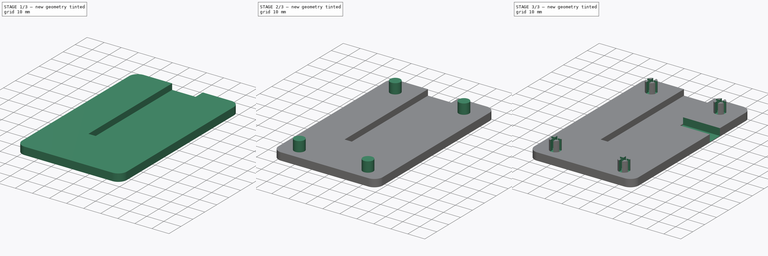
[diagram: build sequence overview — one tinted view per stage of 3, left to right]
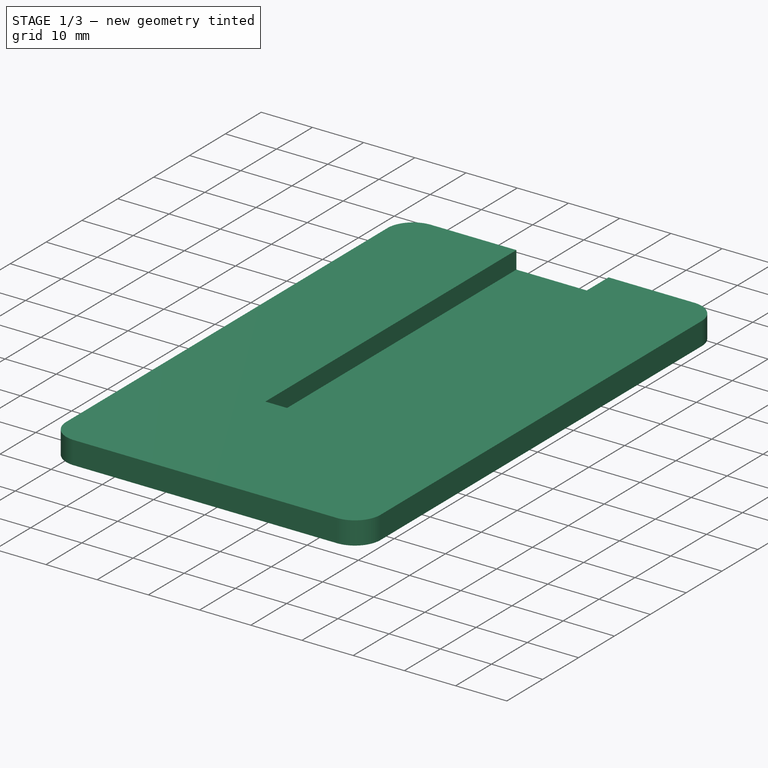
[diagram: stage 1 of 3 — iso view after this stage's code; geometry added in this stage tinted green]
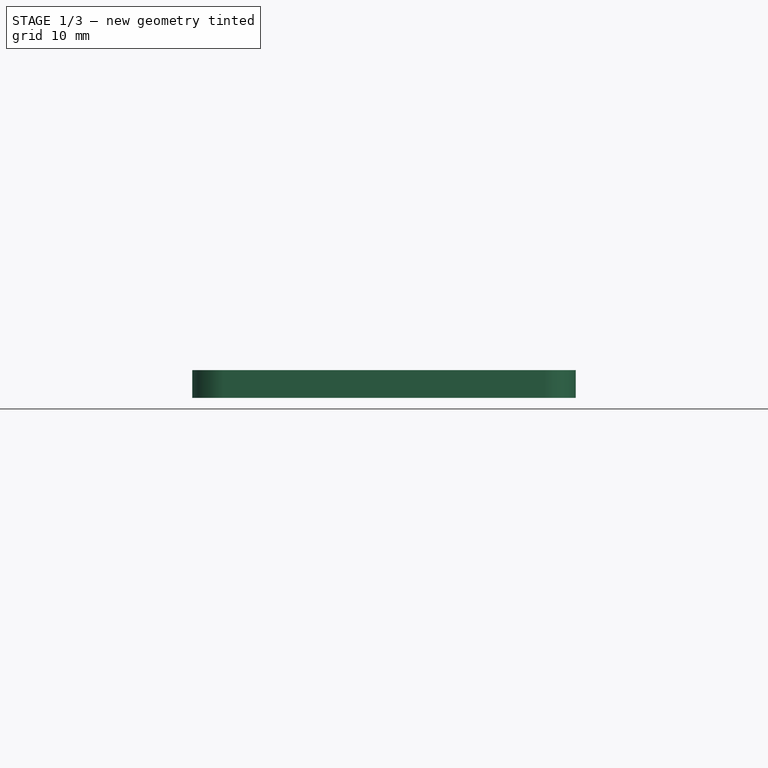
[diagram: stage 1 of 3 — front view after this stage's code; geometry added in this stage tinted green]
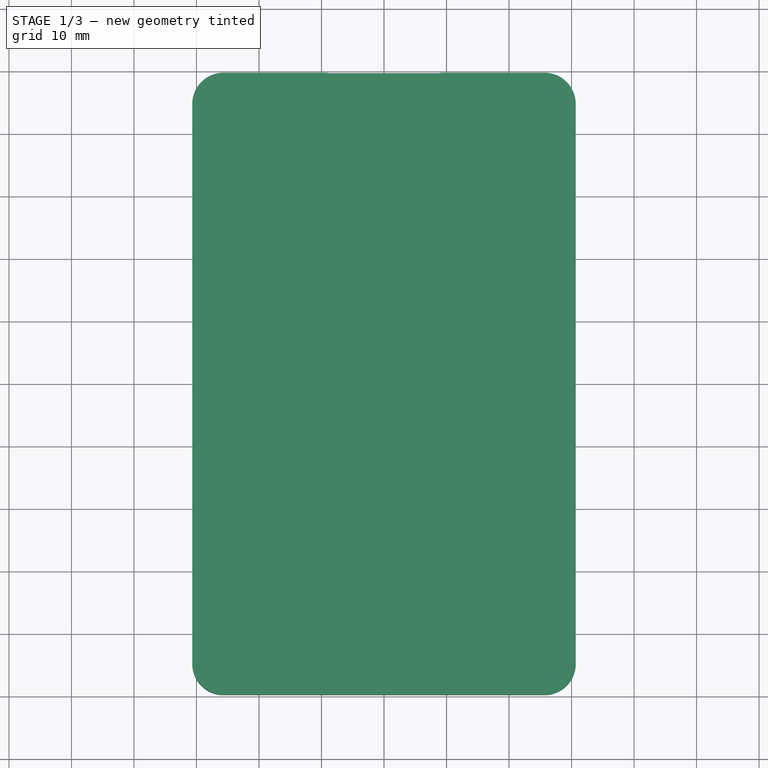
[diagram: stage 1 of 3 — top view after this stage's code; geometry added in this stage tinted green]
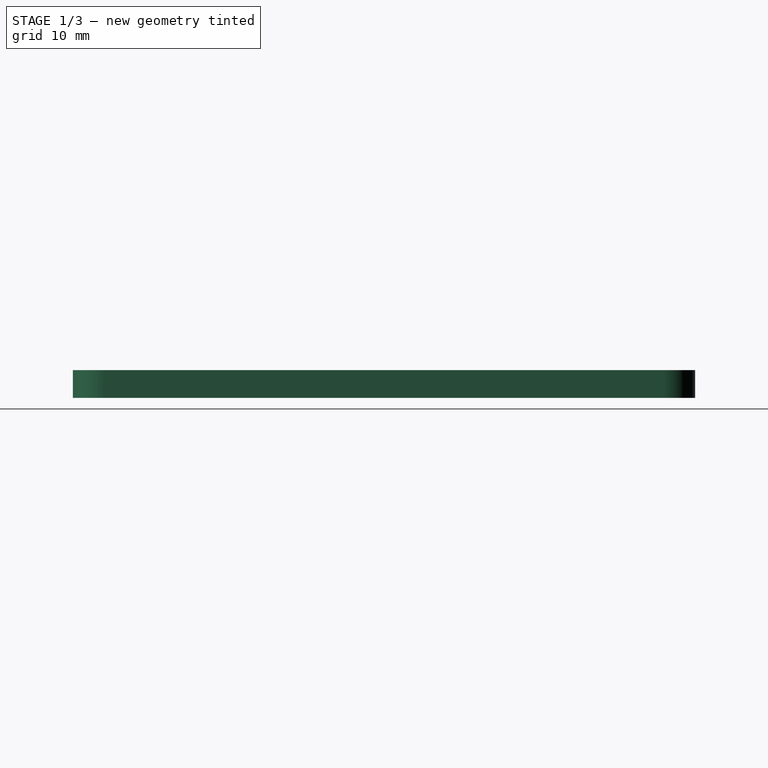
[diagram: stage 1 of 3 — right view after this stage's code; geometry added in this stage tinted green]
FCSTD DOCUMENT  (FreeCAD 1.0R39109 (Git))
Label: Stomper Base
License: All rights reserved
LicenseURL: https://en.wikipedia.org/wiki/All_rights_reserved
objects: Sketcher::SketchObject×5, PartDesign::Pocket×3, PartDesign::Pad×2, PartDesign::Body×1
note: 26 computed .brp shape members not serialized (recipe doc carries the construction recipe); baked Part::Feature solids carry a one-line shape summary decoded from their .brp

FEATURE [Sketcher::SketchObject] Sketch
  ArcFitTolerance = 1e-06
  AttachmentSupport = -> [XY_Plane]
  FullyConstrained = true
  MakeInternals = false
  MapMode = 5
  sketch-geometry (13):
    g0: LineSegment StartX=-30.675 StartY=44.765 StartZ=0 EndX=-30.675 EndY=-44.765 EndZ=0
    g1: LineSegment StartX=-25.675 StartY=-49.765 StartZ=0 EndX=25.675 EndY=-49.765 EndZ=0
    g2: LineSegment StartX=30.675 StartY=-44.765 StartZ=0 EndX=30.675 EndY=44.765 EndZ=0
    g3: LineSegment StartX=25.675 StartY=49.765 StartZ=0 EndX=-25.675 EndY=49.765 EndZ=0
    g4: GeomPoint [constr] X=0 Y=0 Z=0
    g5: ArcOfCircle CenterX=-25.675 CenterY=44.765 CenterZ=0 NormalX=0 NormalY=0 NormalZ=1 AngleXU=0 Radius=5 StartAngle=1.5708 EndAngle=3.14159
    g6: GeomPoint [constr] X=-30.675 Y=49.765 Z=0
    g7: ArcOfCircle CenterX=25.675 CenterY=44.765 CenterZ=0 NormalX=0 NormalY=0 NormalZ=1 AngleXU=0 Radius=5 StartAngle=4e-16 EndAngle=1.5708
    g8: GeomPoint [constr] X=30.675 Y=49.765 Z=0
    g9: ArcOfCircle CenterX=25.675 CenterY=-44.765 CenterZ=0 NormalX=0 NormalY=0 NormalZ=1 AngleXU=0 Radius=5 StartAngle=4.71239 EndAngle=6.28319
    g10: GeomPoint [constr] X=30.675 Y=-49.765 Z=0
    g11: ArcOfCircle CenterX=-25.675 CenterY=-44.765 CenterZ=0 NormalX=0 NormalY=0 NormalZ=1 AngleXU=0 Radius=5 StartAngle=3.14159 EndAngle=4.71239
    g12: GeomPoint [constr] X=-30.675 Y=-49.765 Z=0
  constraints (28):
    c: Vertical(g0)
    c: Vertical(g2)
    c: Horizontal(g1)
    c: Horizontal(g3)
    c: Symmetric(g10,g6,g4)
    c: Coincident(g4,g-1)
    c: DistanceX(g6,g8) = 61.35
    c: DistanceY(g10,g8) = 99.53
    c: PointOnObject(g6,g0)
    c: PointOnObject(g6,g3)
    c: Tangent(g0,g5) = -1.5708
    c: Tangent(g3,g5) = -1.5708
    c: Radius(g5) = 5
    c: PointOnObject(g8,g2)
    c: PointOnObject(g8,g3)
    c: Tangent(g2,g7) = -1.5708
    c: Tangent(g3,g7) = -1.5708
    c: PointOnObject(g10,g1)
    c: PointOnObject(g10,g2)
    c: Tangent(g1,g9) = -1.5708
    c: Tangent(g2,g9) = -1.5708
    c: PointOnObject(g12,g0)
    c: PointOnObject(g12,g1)
    c: Tangent(g0,g11) = -1.5708
    c: Tangent(g1,g11) = -1.5708
    c: Equal(g7,g5)
    c: Equal(g9,g7)
    c: Equal(g11,g9)
FEATURE [PartDesign::Pad] Pad
  Direction = (0,0,1)
  Length = 4.45
  Length2 = 10
  Profile = -> Sketch
  ReferenceAxis = -> Sketch [N_Axis]
  Refine = true
  Suppressed = false
  Type = 0
FEATURE [Sketcher::SketchObject] Sketch001
  ArcFitTolerance = 1e-06
  AttachmentSupport = -> [Pad]
  ExternalGeometry = -> [Pad]
  FullyConstrained = true
  MakeInternals = false
  MapMode = 5
  Placement = pos=(0,0,4.45) rot=(0,0,1;0rad)
  sketch-geometry (4):
    g0: LineSegment StartX=-9 StartY=49.765 StartZ=0 EndX=-9 EndY=-20.235 EndZ=0
    g1: LineSegment StartX=9 StartY=49.765 StartZ=0 EndX=9 EndY=-20.235 EndZ=0
    g2: LineSegment StartX=-9 StartY=49.765 StartZ=0 EndX=9 EndY=49.765 EndZ=0
    g3: LineSegment StartX=-9 StartY=-20.235 StartZ=0 EndX=9 EndY=-20.235 EndZ=0
  constraints (11):
    c: PointOnObject(g0,g-3)
    c: Vertical(g0)
    c: DistanceY(g0,g0) = 70
    c: Vertical(g1)
    c: Equal(g0,g1)
    c: Coincident(g2,g0)
    c: Coincident(g2,g1)
    c: Symmetric(g0,g1,g-2)
    c: DistanceX(g0,g-1) = 9
    c: Coincident(g3,g0)
    c: Coincident(g3,g1)
FEATURE [PartDesign::Pocket] Pocket
  BaseFeature = -> Pad
  Direction = (0,0,-1)
  Length = 3.45
  Length2 = 5
  Profile = -> Sketch001
  ReferenceAxis = -> Sketch001 [N_Axis]
  Refine = true
  Suppressed = false
  Type = 0
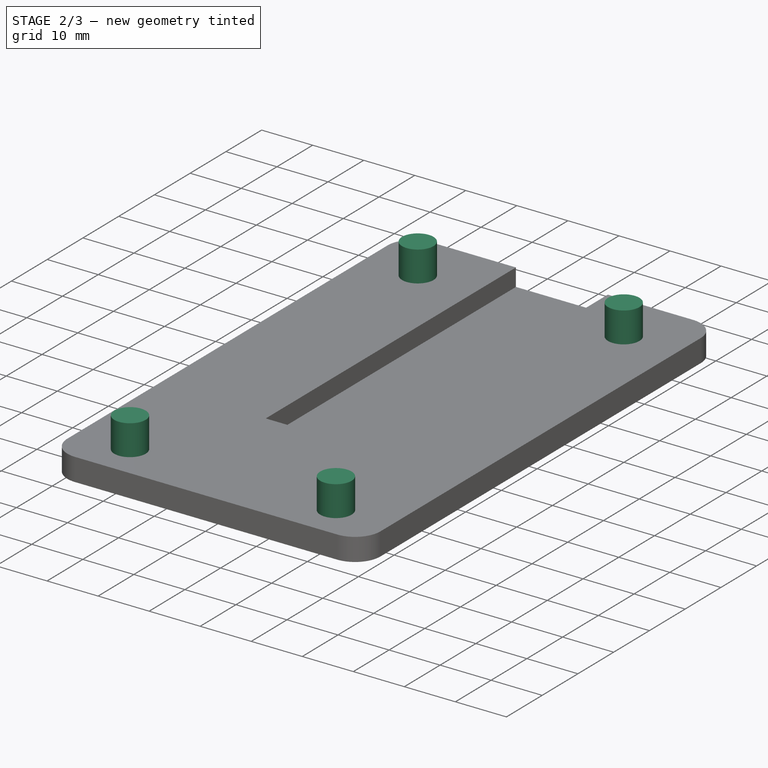
[diagram: stage 2 of 3 — iso view after this stage's code; geometry added in this stage tinted green]
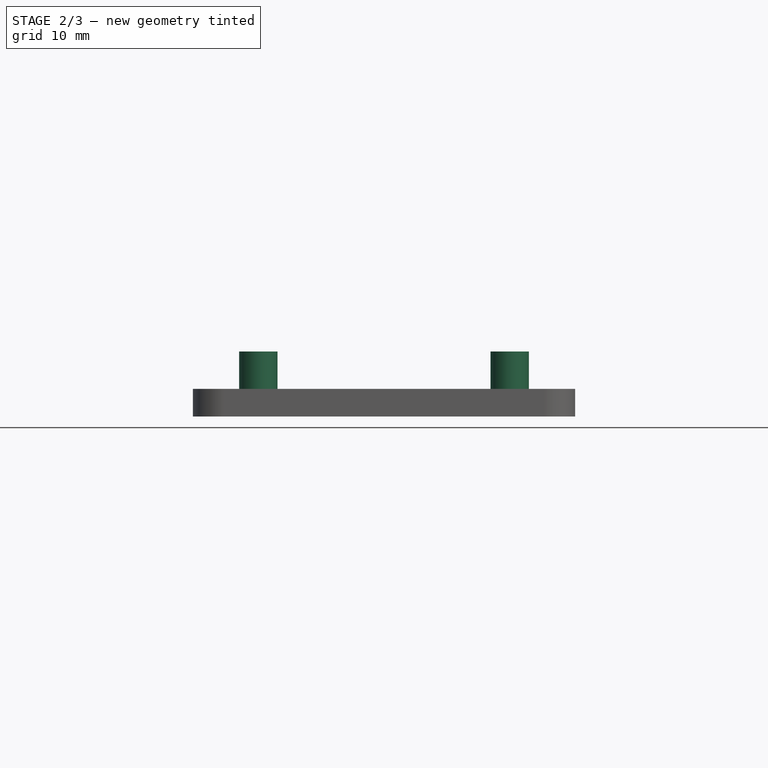
[diagram: stage 2 of 3 — front view after this stage's code; geometry added in this stage tinted green]
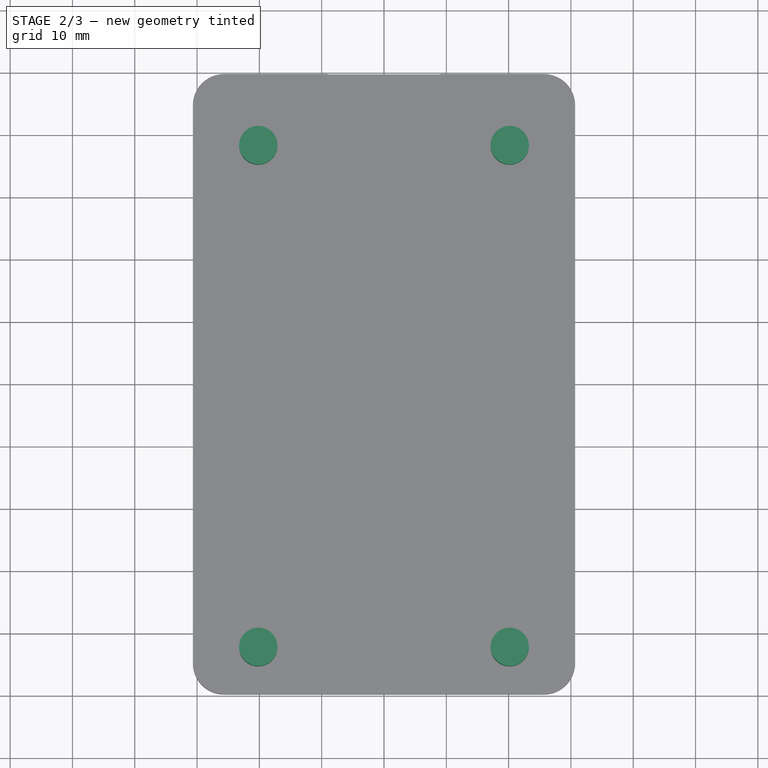
[diagram: stage 2 of 3 — top view after this stage's code; geometry added in this stage tinted green]
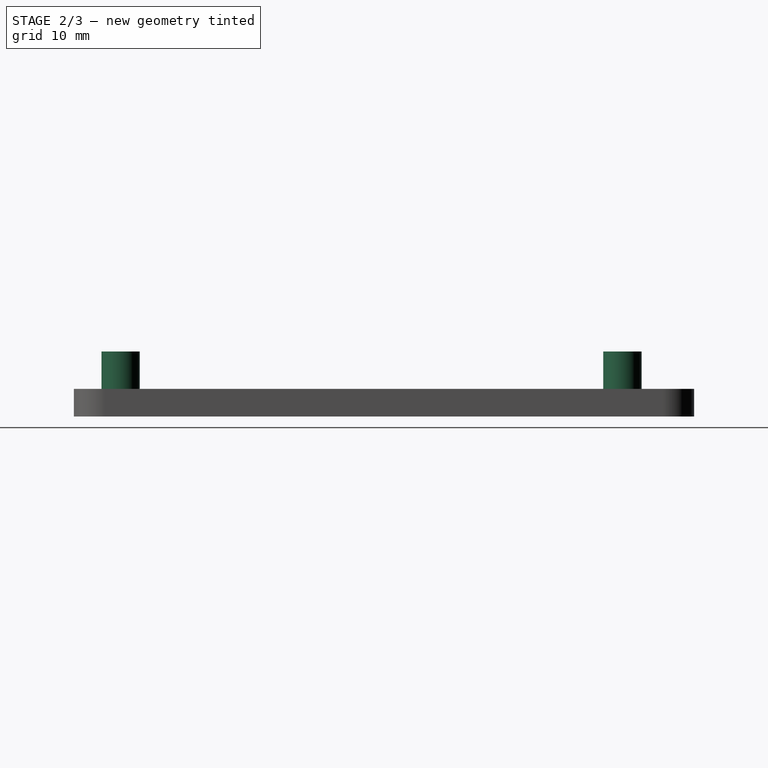
[diagram: stage 2 of 3 — right view after this stage's code; geometry added in this stage tinted green]
FEATURE [Sketcher::SketchObject] Sketch002
  ArcFitTolerance = 1e-06
  AttachmentSupport = -> [Pocket]
  ExternalGeometry = -> [Pocket]
  FullyConstrained = true
  MakeInternals = false
  MapMode = 5
  Placement = pos=(0,0,4.45) rot=(0,0,1;0rad)
  sketch-geometry (4):
    g0: Circle CenterX=-20.175 CenterY=38.265 CenterZ=0 NormalX=0 NormalY=0 NormalZ=1 AngleXU=0 Radius=3.075
    g1: Circle CenterX=20.175 CenterY=38.265 CenterZ=0 NormalX=0 NormalY=0 NormalZ=1 AngleXU=0 Radius=3.075
    g2: Circle CenterX=-20.175 CenterY=-42.265 CenterZ=0 NormalX=0 NormalY=0 NormalZ=1 AngleXU=0 Radius=3.075
    g3: Circle CenterX=20.175 CenterY=-42.265 CenterZ=0 NormalX=0 NormalY=0 NormalZ=1 AngleXU=0 Radius=3.075
  constraints (10):
    c: Diameter(g0) = 6.15
    c: Distance(g0,g-3) = 11.5
    c: Distance(g0,g-7) = 10.5
    c: Diameter(g1) = 6.15
    c: Symmetric(g0,g1,g-2)
    c: Diameter(g2) = 6.15
    c: Diameter(g3) = 6.15
    c: Distance(g2,g-6) = 7.5
    c: Symmetric(g2,g3,g-2)
    c: Distance(g2,g-7) = 10.5
FEATURE [PartDesign::Pad] Pad001
  BaseFeature = -> Pocket
  Direction = (0,0,1)
  Length = 6
  Length2 = 10
  Profile = -> Sketch002
  ReferenceAxis = -> Sketch002 [N_Axis]
  Refine = true
  Suppressed = false
  Type = 0
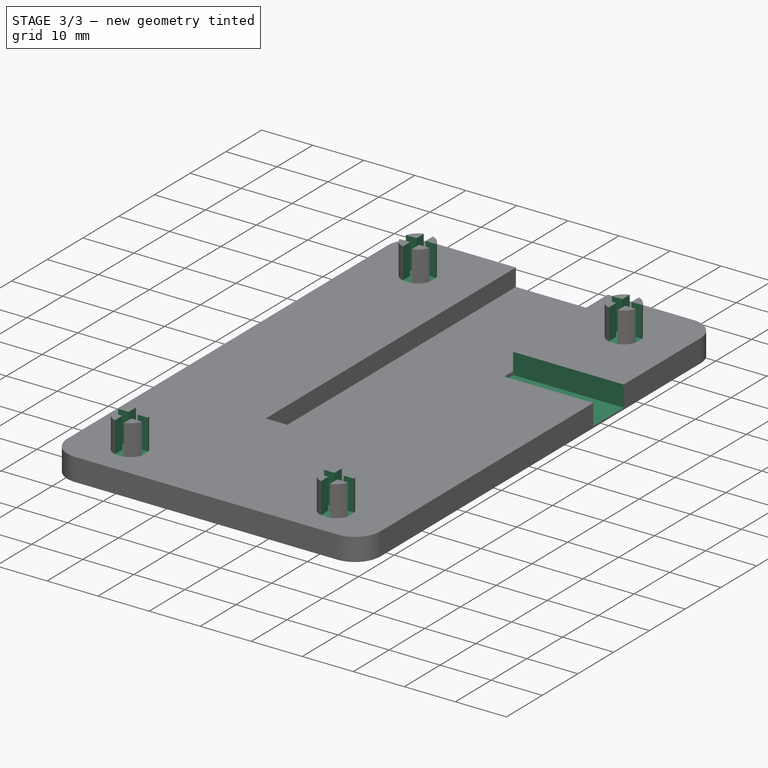
[diagram: stage 3 of 3 — iso view after this stage's code; geometry added in this stage tinted green]
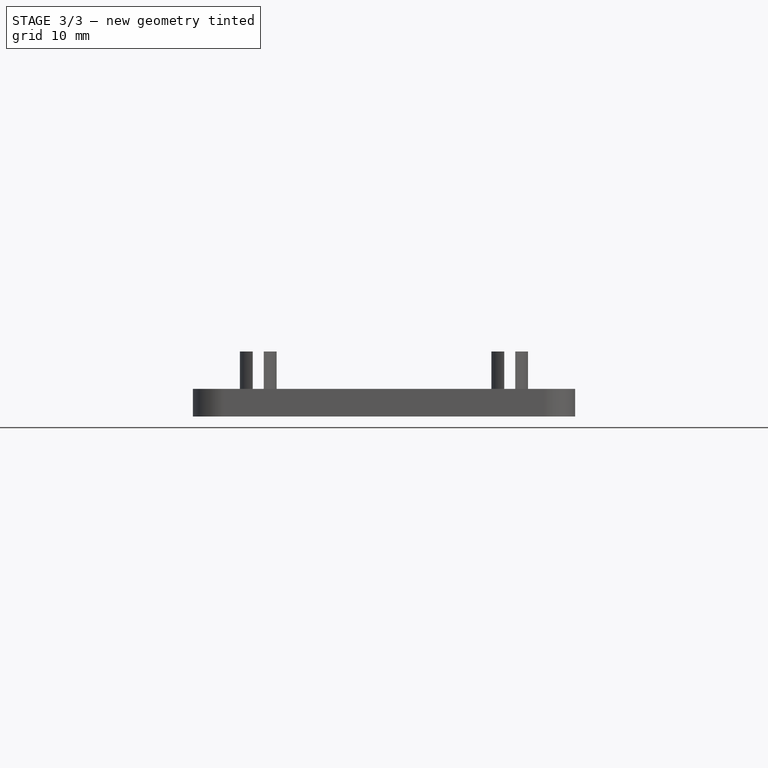
[diagram: stage 3 of 3 — front view after this stage's code; geometry added in this stage tinted green]
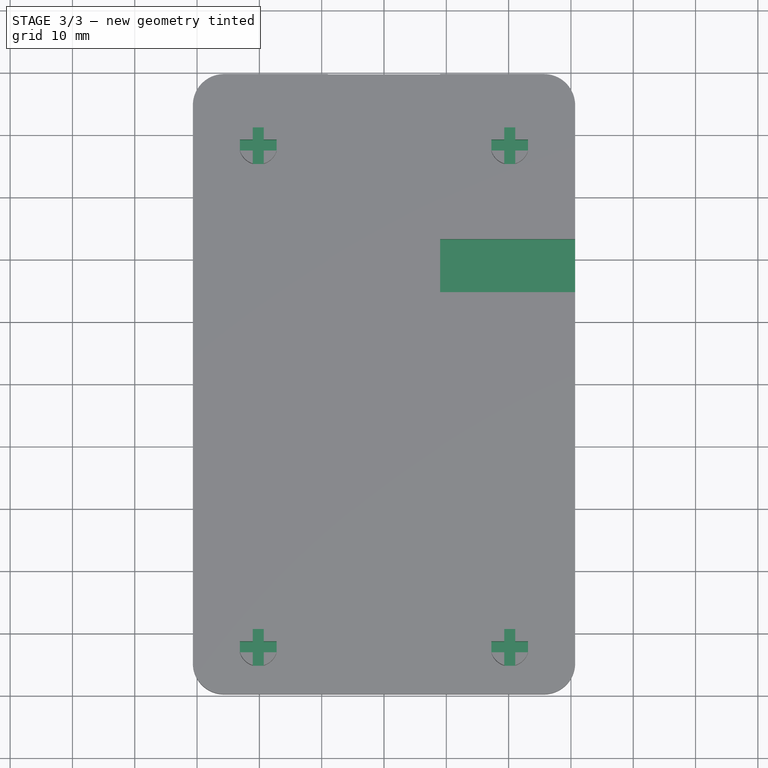
[diagram: stage 3 of 3 — top view after this stage's code; geometry added in this stage tinted green]
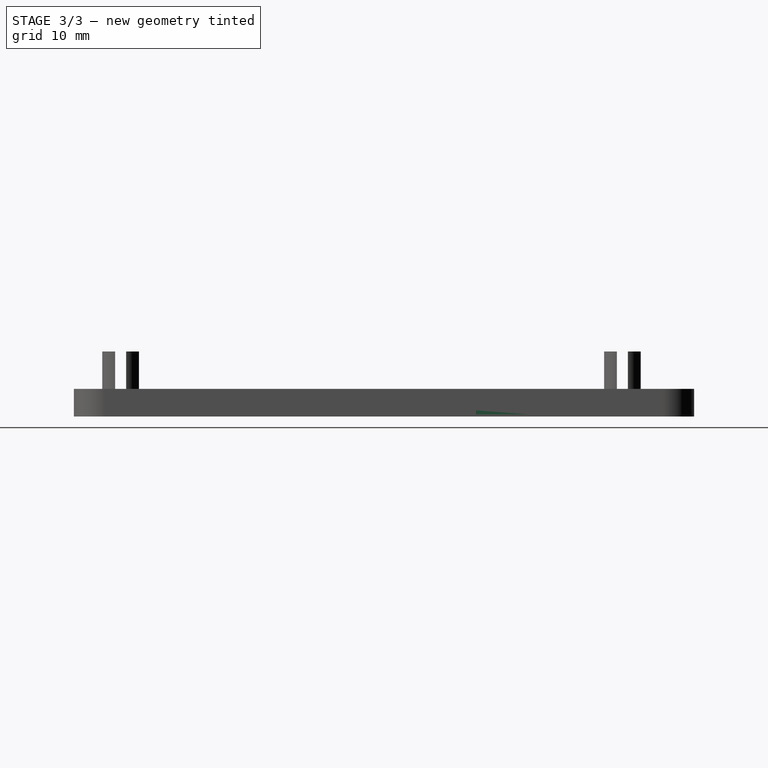
[diagram: stage 3 of 3 — right view after this stage's code; geometry added in this stage tinted green]
FEATURE [Sketcher::SketchObject] Sketch003
  ArcFitTolerance = 1e-06
  AttachmentSupport = -> [Pad001]
  ExternalGeometry = -> [Pad001]
  FullyConstrained = false
  MakeInternals = false
  MapMode = 5
  Placement = pos=(0,0,10.45) rot=(0,0,1;0rad)
  sketch-geometry (64):
    g0: LineSegment StartX=-21.0589 StartY=42.3489 StartZ=0 EndX=-21.0589 EndY=39.1489 EndZ=0
    g1: LineSegment StartX=-21.0589 StartY=34.1811 StartZ=0 EndX=-19.2911 EndY=34.1811 EndZ=0
    g2: LineSegment StartX=-19.2911 StartY=34.1811 StartZ=0 EndX=-19.2911 EndY=37.3811 EndZ=0
    g3: LineSegment StartX=-19.2911 StartY=42.3489 StartZ=0 EndX=-21.0589 EndY=42.3489 EndZ=0
    g4: LineSegment StartX=-24.2589 StartY=39.1489 StartZ=0 EndX=-24.2589 EndY=37.3811 EndZ=0
    g5: LineSegment StartX=-24.2589 StartY=37.3811 StartZ=0 EndX=-21.0589 EndY=37.3811 EndZ=0
    g6: LineSegment StartX=-16.0911 StartY=37.3811 StartZ=0 EndX=-16.0911 EndY=39.1489 EndZ=0
    g7: LineSegment StartX=-16.0911 StartY=39.1489 StartZ=0 EndX=-19.2911 EndY=39.1489 EndZ=0
    g8: LineSegment StartX=-21.0589 StartY=39.1489 StartZ=0 EndX=-24.2589 EndY=39.1489 EndZ=0
    g9: LineSegment StartX=-19.2911 StartY=37.3811 StartZ=0 EndX=-16.0911 EndY=37.3811 EndZ=0
    g10: LineSegment StartX=-19.2911 StartY=39.1489 StartZ=0 EndX=-19.2911 EndY=42.3489 EndZ=0
    g11: LineSegment StartX=-21.0589 StartY=37.3811 StartZ=0 EndX=-21.0589 EndY=34.1811 EndZ=0
    g12: LineSegment [constr] StartX=-21.0589 StartY=39.1489 StartZ=0 EndX=-19.2911 EndY=37.3811 EndZ=0
    g13: GeomPoint [constr] X=-20.175 Y=38.265 Z=0
    g14: LineSegment [constr] StartX=-21.0589 StartY=37.3811 StartZ=0 EndX=-19.2911 EndY=39.1489 EndZ=0
    g15: GeomPoint [constr] X=-20.175 Y=38.265 Z=0
    g16: LineSegment StartX=21.0589 StartY=42.3489 StartZ=0 EndX=21.0589 EndY=39.1489 EndZ=0
    g17: LineSegment StartX=21.0589 StartY=34.1811 StartZ=0 EndX=19.2911 EndY=34.1811 EndZ=0
    g18: LineSegment StartX=19.2911 StartY=34.1811 StartZ=0 EndX=19.2911 EndY=37.3811 EndZ=0
    g19: LineSegment StartX=19.2911 StartY=42.3489 StartZ=0 EndX=21.0589 EndY=42.3489 EndZ=0
    g20: LineSegment StartX=24.2589 StartY=39.1489 StartZ=0 EndX=24.2589 EndY=37.3811 EndZ=0
    g21: LineSegment StartX=24.2589 StartY=37.3811 StartZ=0 EndX=21.0589 EndY=37.3811 EndZ=0
    g22: LineSegment StartX=16.0911 StartY=37.3811 StartZ=0 EndX=16.0911 EndY=39.1489 EndZ=0
    g23: LineSegment StartX=16.0911 StartY=39.1489 StartZ=0 EndX=19.2911 EndY=39.1489 EndZ=0
    g24: LineSegment StartX=21.0589 StartY=39.1489 StartZ=0 EndX=24.2589 EndY=39.1489 EndZ=0
    g25: LineSegment StartX=19.2911 StartY=37.3811 StartZ=0 EndX=16.0911 EndY=37.3811 EndZ=0
    g26: LineSegment StartX=19.2911 StartY=39.1489 StartZ=0 EndX=19.2911 EndY=42.3489 EndZ=0
    g27: LineSegment StartX=21.0589 StartY=37.3811 StartZ=0 EndX=21.0589 EndY=34.1811 EndZ=0
    g28: LineSegment [constr] StartX=21.0589 StartY=39.1489 StartZ=0 EndX=19.2911 EndY=37.3811 EndZ=0
    g29: GeomPoint [constr] X=20.175 Y=38.265 Z=0
    g30: LineSegment [constr] StartX=21.0589 StartY=37.3811 StartZ=0 EndX=19.2911 EndY=39.1489 EndZ=0
    g31: GeomPoint [constr] X=20.175 Y=38.265 Z=0
    g32: LineSegment StartX=-21.0589 StartY=-46.5081 StartZ=0 EndX=-21.0589 EndY=-43.1489 EndZ=0
    g33: LineSegment StartX=-21.0589 StartY=-38.0219 StartZ=0 EndX=-19.2911 EndY=-38.0219 EndZ=0
    g34: LineSegment StartX=-19.2911 StartY=-38.0219 StartZ=0 EndX=-19.2911 EndY=-41.3811 EndZ=0
    g35: LineSegment StartX=-19.2911 StartY=-46.5081 StartZ=0 EndX=-21.0589 EndY=-46.5081 EndZ=0
    g36: LineSegment StartX=-24.4181 StartY=-43.1489 StartZ=0 EndX=-24.4181 EndY=-41.3811 EndZ=0
    g37: LineSegment StartX=-24.4181 StartY=-41.3811 StartZ=0 EndX=-21.0589 EndY=-41.3811 EndZ=0
    g38: LineSegment StartX=-15.9319 StartY=-41.3811 StartZ=0 EndX=-15.9319 EndY=-43.1489 EndZ=0
    g39: LineSegment StartX=-15.9319 StartY=-43.1489 StartZ=0 EndX=-19.2911 EndY=-43.1489 EndZ=0
    g40: LineSegment StartX=-21.0589 StartY=-43.1489 StartZ=0 EndX=-24.4181 EndY=-43.1489 EndZ=0
    g41: LineSegment StartX=-19.2911 StartY=-41.3811 StartZ=0 EndX=-15.9319 EndY=-41.3811 EndZ=0
    g42: LineSegment StartX=-19.2911 StartY=-43.1489 StartZ=0 EndX=-19.2911 EndY=-46.5081 EndZ=0
    g43: LineSegment StartX=-21.0589 StartY=-41.3811 StartZ=0 EndX=-21.0589 EndY=-38.0219 EndZ=0
    g44: LineSegment [constr] StartX=-21.0589 StartY=-43.1489 StartZ=0 EndX=-19.2911 EndY=-41.3811 EndZ=0
    g45: GeomPoint [constr] X=-20.175 Y=-42.265 Z=0
    g46: LineSegment [constr] StartX=-21.0589 StartY=-41.3811 StartZ=0 EndX=-19.2911 EndY=-43.1489 EndZ=0
    g47: GeomPoint [constr] X=-20.175 Y=-42.265 Z=0
    g48: LineSegment StartX=21.0589 StartY=-47.1099 StartZ=0 EndX=21.0589 EndY=-43.1489 EndZ=0
    g49: LineSegment StartX=21.0589 StartY=-37.4201 StartZ=0 EndX=19.2911 EndY=-37.4201 EndZ=0
    g50: LineSegment StartX=19.2911 StartY=-37.4201 StartZ=0 EndX=19.2911 EndY=-41.3811 EndZ=0
    g51: LineSegment StartX=19.2911 StartY=-47.1099 StartZ=0 EndX=21.0589 EndY=-47.1099 EndZ=0
    g52: LineSegment StartX=25.0199 StartY=-43.1489 StartZ=0 EndX=25.0199 EndY=-41.3811 EndZ=0
    g53: LineSegment StartX=25.0199 StartY=-41.3811 StartZ=0 EndX=21.0589 EndY=-41.3811 EndZ=0
    g54: LineSegment StartX=15.3301 StartY=-41.3811 StartZ=0 EndX=15.3301 EndY=-43.1489 EndZ=0
    g55: LineSegment StartX=15.3301 StartY=-43.1489 StartZ=0 EndX=19.2911 EndY=-43.1489 EndZ=0
    g56: LineSegment StartX=21.0589 StartY=-43.1489 StartZ=0 EndX=25.0199 EndY=-43.1489 EndZ=0
    g57: LineSegment StartX=19.2911 StartY=-41.3811 StartZ=0 EndX=15.3301 EndY=-41.3811 EndZ=0
    g58: LineSegment StartX=19.2911 StartY=-43.1489 StartZ=0 EndX=19.2911 EndY=-47.1099 EndZ=0
    g59: LineSegment StartX=21.0589 StartY=-41.3811 StartZ=0 EndX=21.0589 EndY=-37.4201 EndZ=0
    g60: LineSegment [constr] StartX=21.0589 StartY=-43.1489 StartZ=0 EndX=19.2911 EndY=-41.3811 EndZ=0
    g61: GeomPoint [constr] X=20.175 Y=-42.265 Z=0
    g62: LineSegment [constr] StartX=21.0589 StartY=-41.3811 StartZ=0 EndX=19.2911 EndY=-43.1489 EndZ=0
    g63: GeomPoint [constr] X=20.175 Y=-42.265 Z=0
  constraints (170):
    c: Coincident(g11,g1)
    c: Coincident(g1,g2)
    c: Coincident(g10,g3)
    c: Coincident(g3,g0)
    c: Vertical(g0)
    c: Vertical(g2)
    c: Horizontal(g1)
    c: Horizontal(g3)
    c: Coincident(g4,g5)
    c: Coincident(g9,g6)
    c: Coincident(g6,g7)
    c: Coincident(g8,g4)
    c: Vertical(g4)
    c: Vertical(g6)
    c: Horizontal(g5)
    c: Horizontal(g7)
    c: PointOnObject(g7,g10)
    c: PointOnObject(g5,g11)
    c: Coincident(g2,g9)
    c: PointOnObject(g10,g7)
    c: Coincident(g0,g8)
    c: PointOnObject(g11,g5)
    c: Equal(g0,g8)
    c: Equal(g10,g7)
    c: Equal(g9,g2)
    c: Equal(g11,g5)
    c: Perpendicular(g8,g0)
    c: Perpendicular(g11,g5)
    c: Perpendicular(g9,g2)
    c: Perpendicular(g10,g7)
    c: Equal(g1,g3)
    c: Equal(g6,g4)
    c: Equal(g0,g10)
    c: Coincident(g12,g0)
    c: Coincident(g12,g2)
    c: Symmetric(g12,g12,g13)
    c: Distance(g5,g7) = 2.5
    c: Coincident(g-3,g13)
    c: Coincident(g14,g5)
    c: Coincident(g14,g7)
    c: Symmetric(g14,g14,g15)
    c: Perpendicular(g12,g14)
    c: DistanceX(g9,g9) = 3.2
    c: Coincident(g27,g17)
    c: Coincident(g17,g18)
    c: Coincident(g26,g19)
    c: Coincident(g19,g16)
    c: Vertical(g16)
    c: Vertical(g18)
    c: Horizontal(g17)
    c: Horizontal(g19)
    c: Coincident(g20,g21)
    c: Coincident(g25,g22)
    c: Coincident(g22,g23)
    c: Coincident(g24,g20)
    c: Vertical(g20)
    c: Vertical(g22)
    c: Horizontal(g21)
    c: Horizontal(g23)
    c: PointOnObject(g23,g26)
    c: PointOnObject(g21,g27)
    c: Coincident(g18,g25)
    c: PointOnObject(g26,g23)
    c: Coincident(g16,g24)
    c: PointOnObject(g27,g21)
    c: Equal(g16,g24)
    c: Equal(g26,g23)
    c: Equal(g25,g18)
    c: Equal(g27,g21)
    c: Perpendicular(g24,g16)
    c: Perpendicular(g27,g21)
    c: Perpendicular(g25,g18)
    c: Perpendicular(g26,g23)
    c: Equal(g17,g19)
    c: Equal(g22,g20)
    c: Equal(g16,g26)
    c: Coincident(g28,g16)
    c: Coincident(g28,g18)
    c: Symmetric(g28,g28,g29)
    c: Distance(g21,g23) = 2.5
    c: Coincident(g30,g21)
    c: Coincident(g30,g23)
    c: Symmetric(g30,g30,g31)
    c: Perpendicular(g28,g30)
    c: Equal(g10,g16)
    c: Symmetric(g15,g29,g-2)
    c: Coincident(g43,g33)
    c: Coincident(g33,g34)
    c: Coincident(g42,g35)
    c: Coincident(g35,g32)
    c: Vertical(g32)
    c: Vertical(g34)
    c: Horizontal(g33)
    c: Horizontal(g35)
    c: Coincident(g36,g37)
    c: Coincident(g41,g38)
    c: Coincident(g38,g39)
    c: Coincident(g40,g36)
    c: Vertical(g36)
    c: Vertical(g38)
    c: Horizontal(g37)
    c: Horizontal(g39)
    c: PointOnObject(g39,g42)
    c: PointOnObject(g37,g43)
    c: Coincident(g34,g41)
    c: PointOnObject(g42,g39)
    c: Coincident(g32,g40)
    c: PointOnObject(g43,g37)
    c: Equal(g32,g40)
    c: Equal(g42,g39)
    c: Equal(g41,g34)
    c: Equal(g43,g37)
    c: Perpendicular(g40,g32)
    c: Perpendicular(g43,g37)
    c: Perpendicular(g41,g34)
    c: Perpendicular(g42,g39)
    c: Equal(g33,g35)
    c: Equal(g38,g36)
    c: Equal(g32,g42)
    c: Coincident(g44,g32)
    c: Coincident(g44,g34)
    c: Symmetric(g44,g44,g45)
    c: Distance(g37,g39) = 2.5
    c: Coincident(g46,g37)
    c: Coincident(g46,g39)
    c: Symmetric(g46,g46,g47)
    c: Perpendicular(g44,g46)
    c: Coincident(g59,g49)
    c: Coincident(g49,g50)
    c: Coincident(g58,g51)
    c: Coincident(g51,g48)
    c: Vertical(g48)
    c: Vertical(g50)
    c: Horizontal(g49)
    c: Horizontal(g51)
    c: Coincident(g52,g53)
    c: Coincident(g57,g54)
    c: Coincident(g54,g55)
    c: Coincident(g56,g52)
    c: Vertical(g52)
    c: Vertical(g54)
    c: Horizontal(g53)
    c: Horizontal(g55)
    c: PointOnObject(g55,g58)
    c: PointOnObject(g53,g59)
    c: Coincident(g50,g57)
    c: PointOnObject(g58,g55)
    c: Coincident(g48,g56)
    c: PointOnObject(g59,g53)
    c: Equal(g48,g56)
    c: Equal(g58,g55)
    c: Equal(g57,g50)
    c: Equal(g59,g53)
    c: Perpendicular(g56,g48)
    c: Perpendicular(g59,g53)
    c: Perpendicular(g57,g50)
    c: Perpendicular(g58,g55)
    c: Equal(g49,g51)
    c: Equal(g54,g52)
    c: Equal(g48,g58)
    c: Coincident(g60,g48)
    c: Coincident(g60,g50)
    c: Symmetric(g60,g60,g61)
    c: Distance(g53,g55) = 2.5
    c: Coincident(g62,g53)
    c: Coincident(g62,g55)
    c: Symmetric(g62,g62,g63)
    c: Perpendicular(g60,g62)
    c: Coincident(g45,g-4)
    c: Coincident(g61,g-5)
FEATURE [PartDesign::Pocket] Pocket001
  BaseFeature = -> Pad001
  Direction = (0,0,-1)
  Length = 0
  Length2 = 5
  Profile = -> Sketch003
  ReferenceAxis = -> Sketch003 [N_Axis]
  Refine = true
  Suppressed = false
  Type = 3
  UpToFace = -> Pad001 [Face5]
FEATURE [Sketcher::SketchObject] Sketch004
  ArcFitTolerance = 1e-06
  AttachmentSupport = -> [Pocket001]
  ExternalGeometry = -> [Pocket001]
  FullyConstrained = true
  MakeInternals = false
  MapMode = 5
  Placement = pos=(0,0,4.45) rot=(0,0,1;0rad)
  sketch-geometry (5):
    g0: GeomPoint [constr] X=9 Y=14.765 Z=0
    g1: LineSegment StartX=9 StartY=14.765 StartZ=0 EndX=30.675 EndY=14.765 EndZ=0
    g2: LineSegment StartX=30.675 StartY=14.765 StartZ=0 EndX=30.675 EndY=23.265 EndZ=0
    g3: LineSegment StartX=30.675 StartY=23.265 StartZ=0 EndX=9 EndY=23.265 EndZ=0
    g4: LineSegment StartX=9 StartY=23.265 StartZ=0 EndX=9 EndY=14.765 EndZ=0
  constraints (12):
    c: Symmetric(g-3,g-3,g0)
    c: Coincident(g1,g2)
    c: Coincident(g2,g3)
    c: Coincident(g3,g4)
    c: Coincident(g4,g1)
    c: Horizontal(g1)
    c: Horizontal(g3)
    c: Vertical(g2)
    c: Vertical(g4)
    c: Symmetric(g-3,g-3,g1)
    c: PointOnObject(g2,g-6)
    c: DistanceY(g2,g2) = 8.5
FEATURE [PartDesign::Pocket] Pocket002
  BaseFeature = -> Pocket001
  Direction = (0,0,-1)
  Length = 4.1
  Length2 = 5
  Profile = -> Sketch004
  ReferenceAxis = -> Sketch004 [N_Axis]
  Refine = true
  Suppressed = false
  Type = 0
FEATURE [PartDesign::Body] Body
  AllowCompound = false
  Group = -> [Sketch,Pad,Sketch001,Pocket,Sketch002,Pad001,Sketch003,Pocket001,Sketch004,Pocket002]
  Origin = -> Origin
  Tip = -> Pocket002
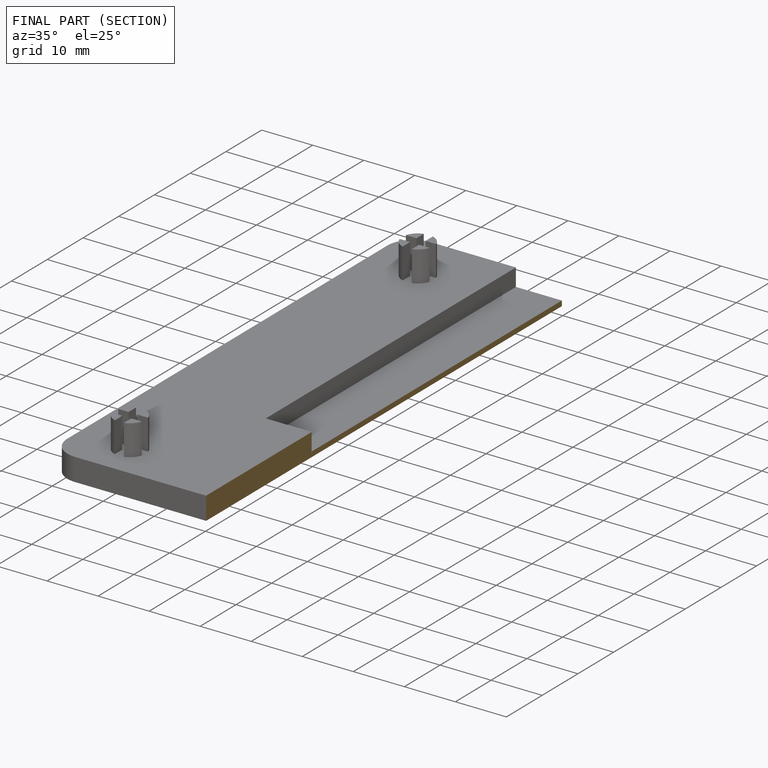
[diagram: finished part — half-section view (interior)]
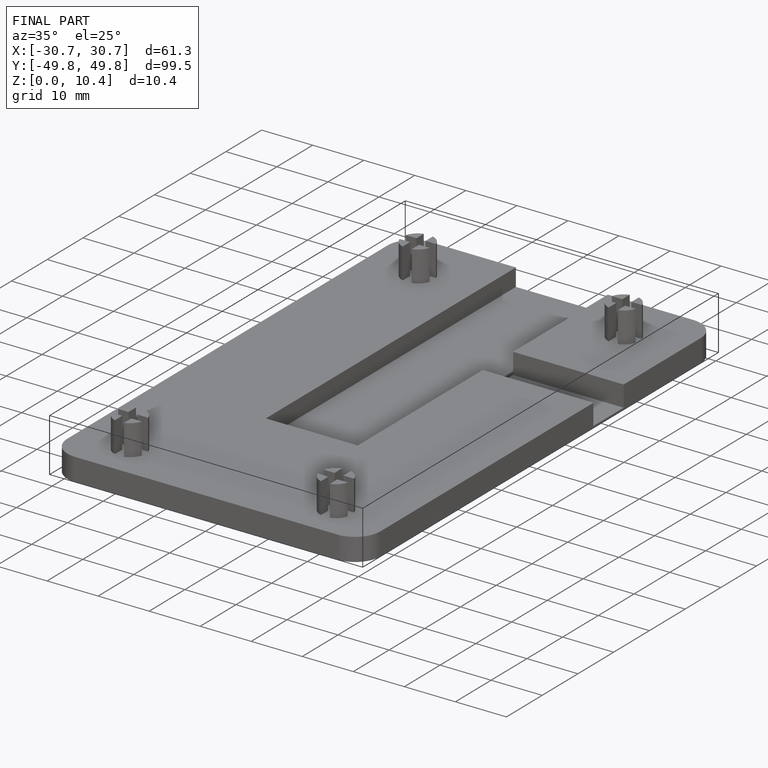
[diagram: finished part — iso view with bounding-box wireframe]
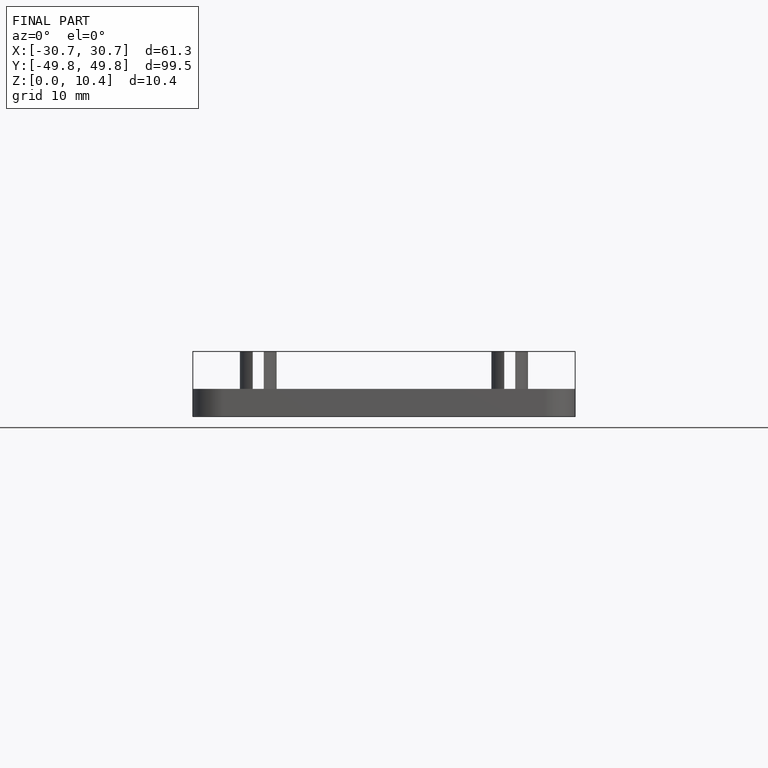
[diagram: finished part — front view with bounding-box wireframe]
